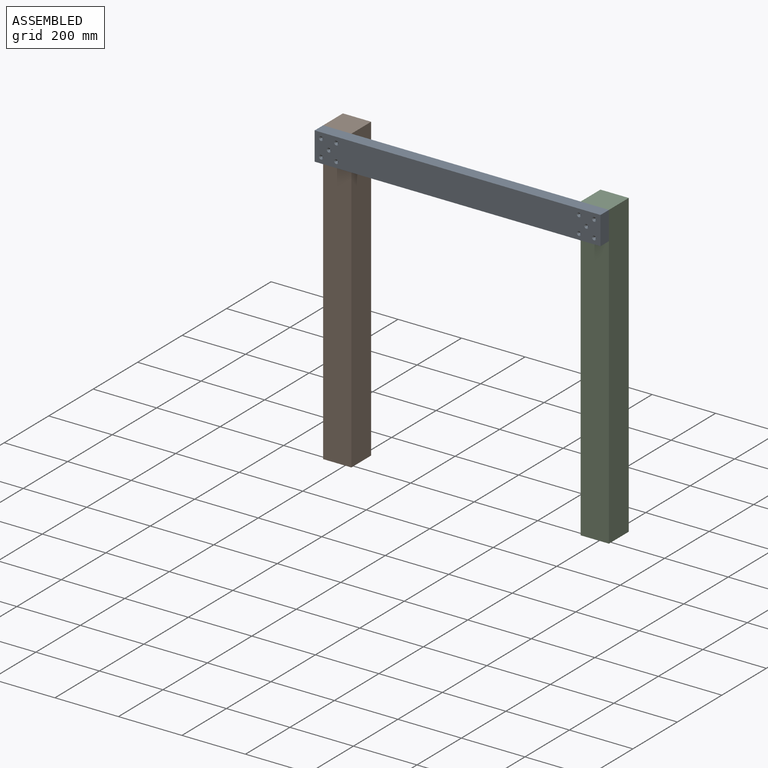
[diagram: assembled view]
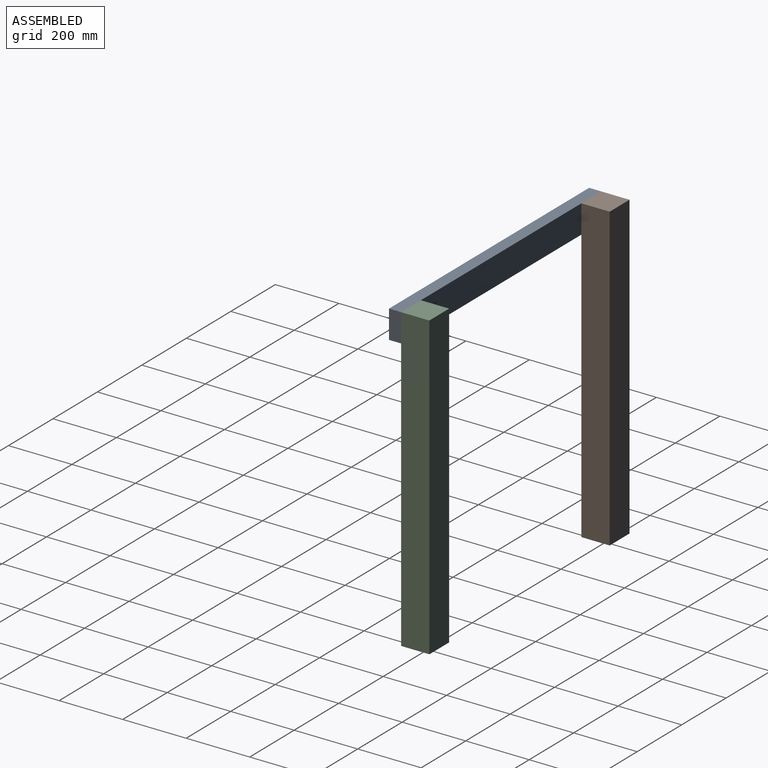
[diagram: assembled view, second angle]
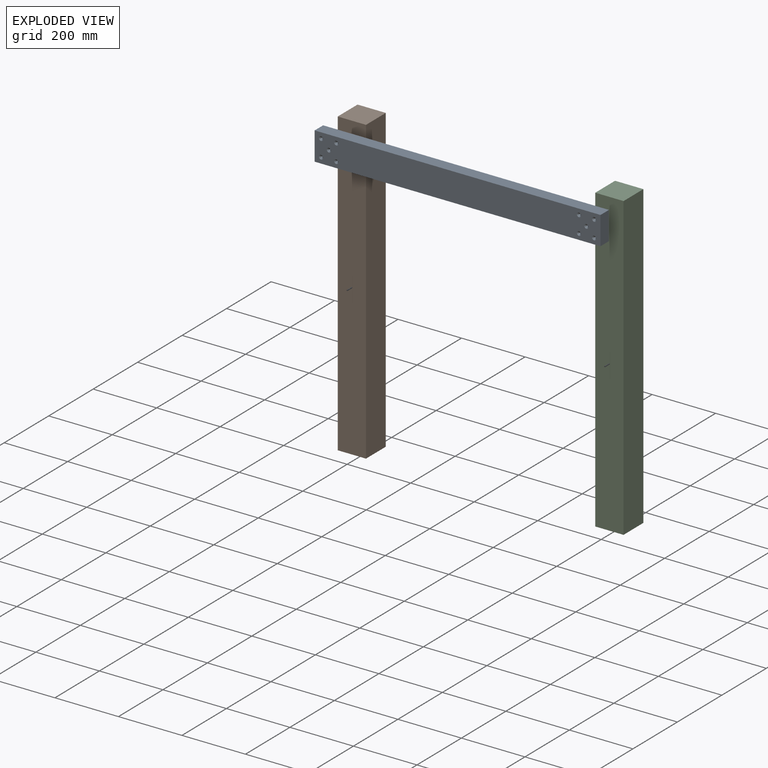
[diagram: exploded view]
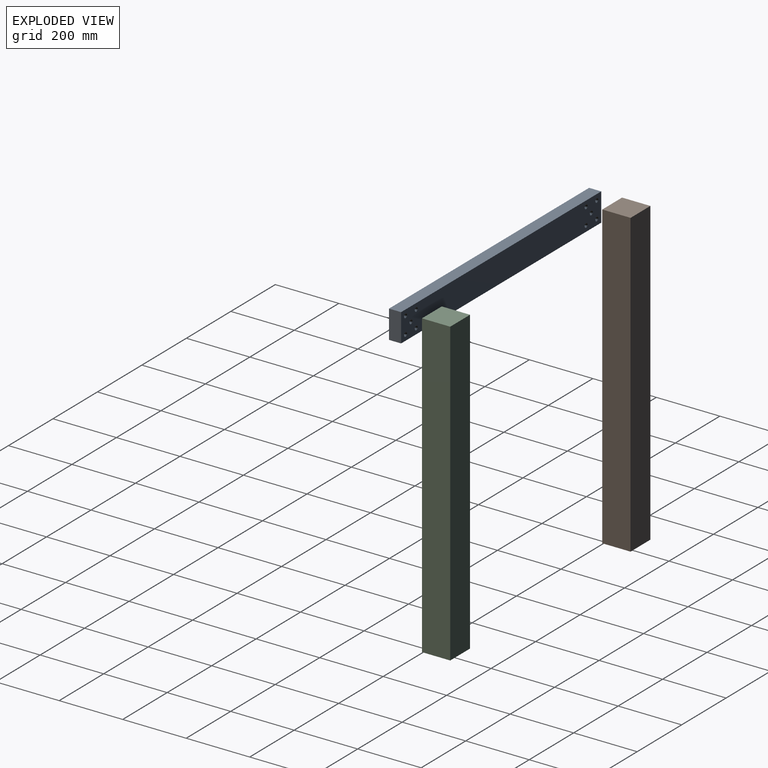
[diagram: exploded view, second angle]
ASSEMBLY  parts=3 mates=2
PART A: 36 faces, bbox 900x38x89 mm
  f0: plane 900x38mm, normal (0,0,1), area 34200mm2, adj f1,f13,f14,f15
  f1: plane 89x38mm, normal (-1,0,0), area 3382mm2, adj f0,f2,f14,f15
  f2: plane 900x38mm, normal (0,0,-1), area 34200mm2, adj f1,f13,f14,f15
  f3: cylinder r=1.5mm len=28mm, axis (0,1,0), area 263.9mm2, adj f16,f27
  f4: cylinder r=1.5mm len=28mm, axis (0,1,0), area 263.9mm2, adj f20,f26
  f5: cylinder r=1.5mm len=28mm, axis (0,1,0), area 263.9mm2, adj f18,f28
  f6: cylinder r=1.5mm len=28mm, axis (0,1,0), area 263.9mm2, adj f17,f30
  f7: cylinder r=1.5mm len=28mm, axis (0,1,0), area 263.9mm2, adj f19,f29
  f8: cylinder r=1.5mm len=28mm, axis (0,1,0), area 263.9mm2, adj f21,f35
  f9: cylinder r=1.5mm len=28mm, axis (0,1,0), area 263.9mm2, adj f25,f34
  f10: cylinder r=1.5mm len=28mm, axis (0,1,0), area 263.9mm2, adj f24,f33
  f11: cylinder r=1.5mm len=28mm, axis (0,1,0), area 263.9mm2, adj f23,f32
  f12: cylinder r=1.5mm len=28mm, axis (0,1,0), area 263.9mm2, adj f22,f31
  f13: plane 89x38mm, normal (1,0,0), area 3382mm2, adj f0,f2,f14,f15
  f14: plane 900x89mm, normal (0,-1,0), area 78772.7mm2, adj f0,f1,f2,f13,f26,f27,f28,f29
  f15: plane 900x89mm, normal (0,1,0), area 78772.7mm2, adj f0,f1,f2,f13,f16,f17,f18,f19
  f16: cone r=6.5mm half-angle=45deg, axis (0,1,0), area 177.7mm2, adj f3,f15
  f17: cone r=6.5mm half-angle=45deg, axis (0,1,0), area 177.7mm2, adj f6,f15
  f18: cone r=6.5mm half-angle=45deg, axis (0,1,0), area 177.7mm2, adj f5,f15
  f19: cone r=6.5mm half-angle=45deg, axis (0,1,0), area 177.7mm2, adj f7,f15
  f20: cone r=6.5mm half-angle=45deg, axis (0,1,0), area 177.7mm2, adj f4,f15
  f21: cone r=6.5mm half-angle=45deg, axis (0,1,0), area 177.7mm2, adj f8,f15
  f22: cone r=6.5mm half-angle=45deg, axis (0,1,0), area 177.7mm2, adj f12,f15
  f23: cone r=6.5mm half-angle=45deg, axis (0,1,0), area 177.7mm2, adj f11,f15
  f24: cone r=6.5mm half-angle=45deg, axis (0,1,0), area 177.7mm2, adj f10,f15
  f25: cone r=6.5mm half-angle=45deg, axis (0,1,0), area 177.7mm2, adj f9,f15
  f26: cone r=1.5mm half-angle=45deg, axis (0,-1,0), area 177.7mm2, adj f4,f14
  f27: cone r=1.5mm half-angle=45deg, axis (0,-1,0), area 177.7mm2, adj f3,f14
  f28: cone r=1.5mm half-angle=45deg, axis (0,-1,0), area 177.7mm2, adj f5,f14
  f29: cone r=1.5mm half-angle=45deg, axis (0,-1,0), area 177.7mm2, adj f7,f14
  f30: cone r=1.5mm half-angle=45deg, axis (0,-1,0), area 177.7mm2, adj f6,f14
  f31: cone r=1.5mm half-angle=45deg, axis (0,-1,0), area 177.7mm2, adj f12,f14
  f32: cone r=1.5mm half-angle=45deg, axis (0,-1,0), area 177.7mm2, adj f11,f14
  f33: cone r=1.5mm half-angle=45deg, axis (0,-1,0), area 177.7mm2, adj f10,f14
  f34: cone r=1.5mm half-angle=45deg, axis (0,-1,0), area 177.7mm2, adj f9,f14
  f35: cone r=1.5mm half-angle=45deg, axis (0,-1,0), area 177.7mm2, adj f8,f14
PART B: 6 faces, bbox 89x89x950 mm
  f0: plane 950x89mm, normal (-1,0,0), area 84550mm2, adj f1,f3,f4,f5
  f1: plane 950x89mm, normal (0,-1,0), area 84550mm2, adj f0,f2,f4,f5
  f2: plane 950x89mm, normal (1,0,0), area 84550mm2, adj f1,f3,f4,f5
  f3: plane 950x89mm, normal (0,1,0), area 84550mm2, adj f0,f2,f4,f5
  f4: plane 89x89mm, normal (0,0,1), area 7921mm2, adj f0,f1,f2,f3
  f5: plane 89x89mm, normal (0,0,-1), area 7921mm2, adj f0,f1,f2,f3
PART C: same geometry as B
PLACE A t=(388.41,-63.5,386)mm
PLACE B at identity
PLACE C t=(811,0,0)mm
MATE fastened A.f15 <-> B.f1  axis (0,1,0) through (-44.5,-44.5,475)mm
MATE fastened C.f1 <-> A.f15  axis (0,-1,0) through (855.5,-44.5,475)mm
